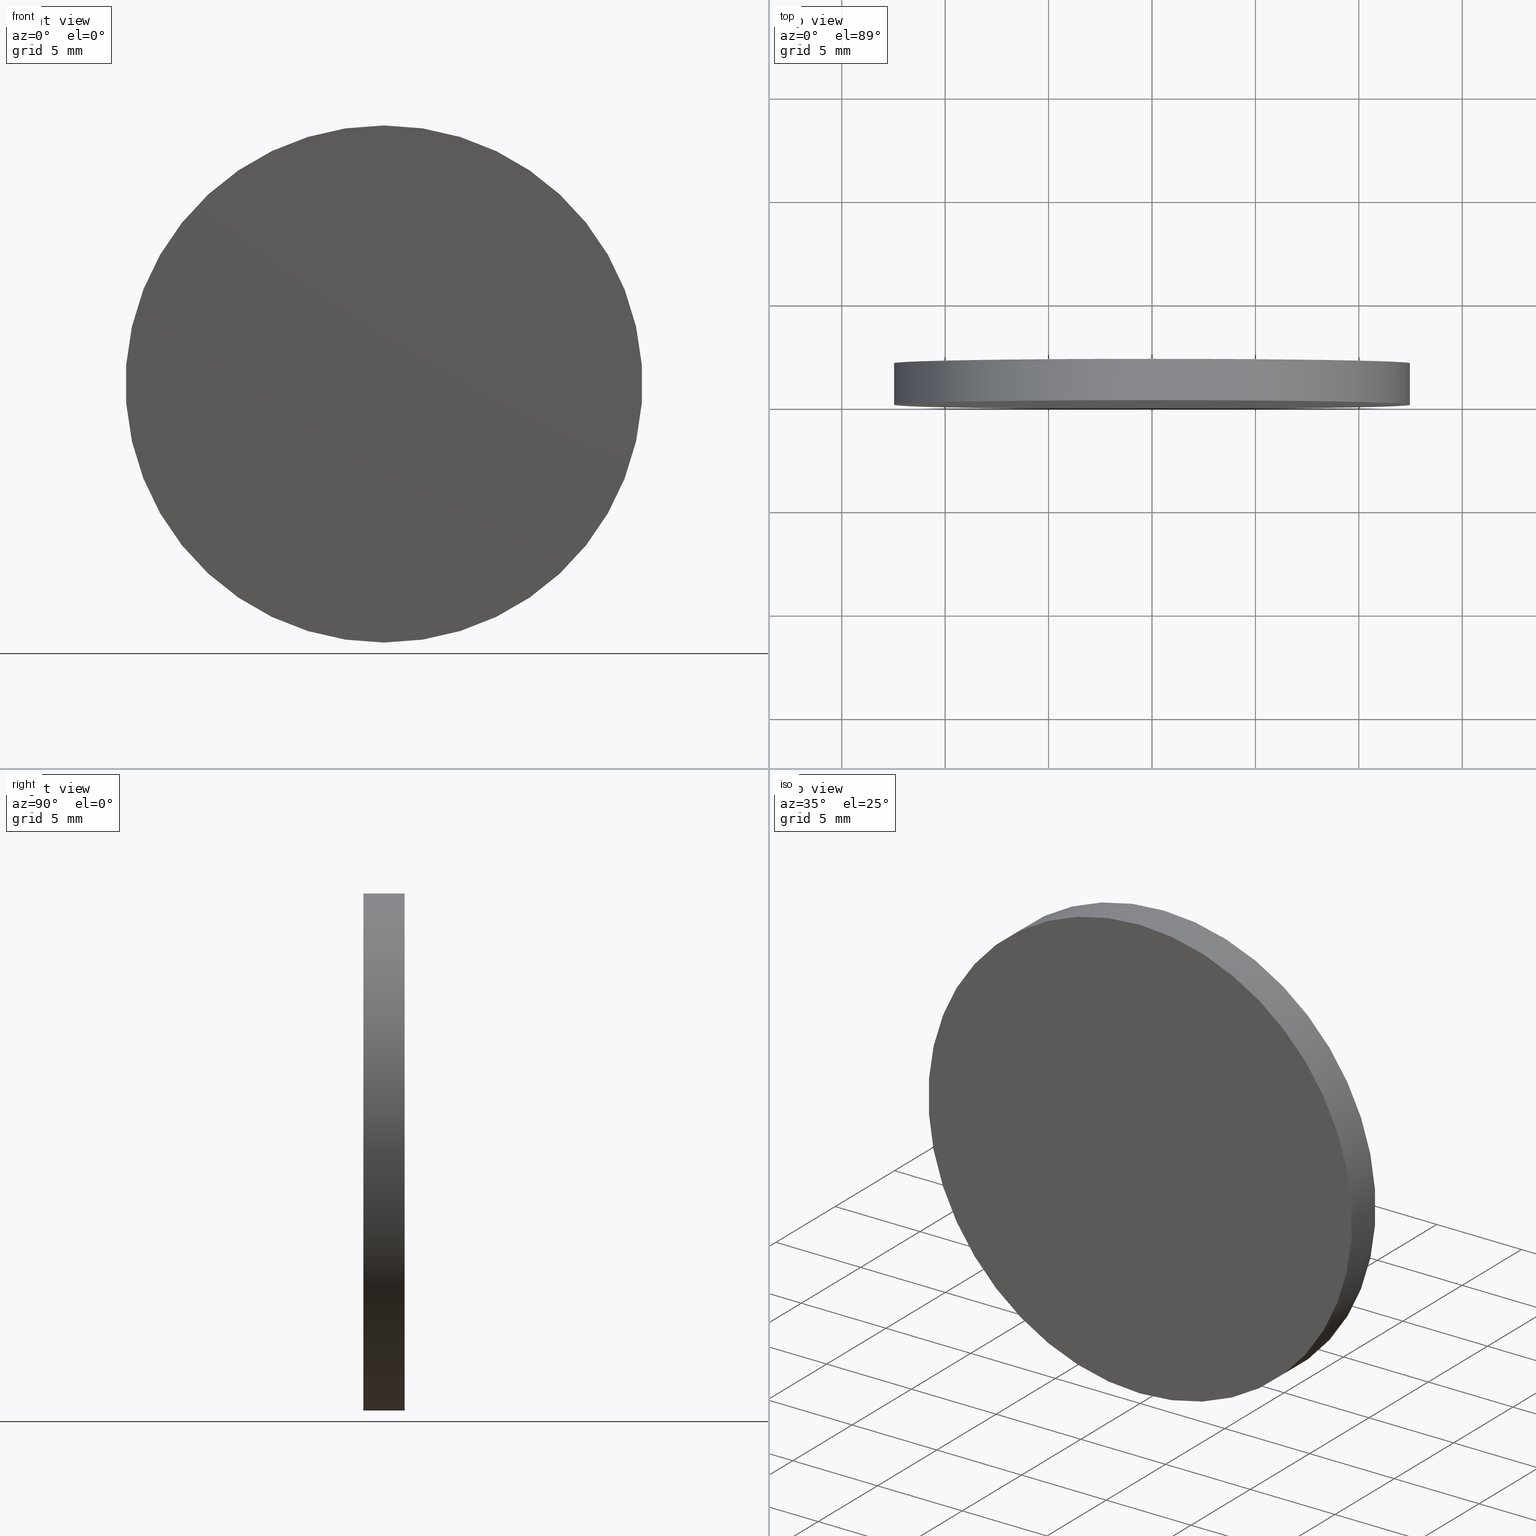
[diagram: canonical four-view strip — front | top / right | iso, engineering-drawing reading convention]
A machine part, canonical four-view strip (front | top / right | iso — engineering-drawing reading convention). The complete STEP part file that produces these views, byte-faithful:
ISO-10303-21;
HEADER;
FILE_DESCRIPTION (( 'STEP AP214' ),
    '1' );
FILE_NAME ('218602.STEP',
    '2019-07-30T02:58:36',
    ( 'user' ),
    ( '΢���й�' ),
    'SwSTEP 2.0',
    'SolidWorks 2016',
    '' );
FILE_SCHEMA (( 'AUTOMOTIVE_DESIGN' ));
ENDSEC;

DATA;
#1 = EDGE_LOOP ( 'NONE', ( #107, #24 ) ) ;
#2 = SHAPE_DEFINITION_REPRESENTATION ( #85, #106 ) ;
#3 = ADVANCED_FACE ( 'NONE', ( #117 ), #60, .F. ) ;
#4 = SURFACE_SIDE_STYLE ('',( #66 ) ) ;
#5 = CARTESIAN_POINT ( 'NONE',  ( 0.0000000000000000000, 2.000000000000000000, 0.0000000000000000000 ) ) ;
#6 = AXIS2_PLACEMENT_3D ( 'NONE', #110, #28, #97 ) ;
#7 = CIRCLE ( 'NONE', #41, 12.50000000000000000 ) ;
#8 = CYLINDRICAL_SURFACE ( 'NONE', #33, 12.50000000000000000 ) ;
#9 = AXIS2_PLACEMENT_3D ( 'NONE', #127, #51, #12 ) ;
#10 = DIRECTION ( 'NONE',  ( 0.0000000000000000000, 1.000000000000000000, 0.0000000000000000000 ) ) ;
#11 = CARTESIAN_POINT ( 'NONE',  ( 0.0000000000000000000, 0.0000000000000000000, 0.0000000000000000000 ) ) ;
#12 = DIRECTION ( 'NONE',  ( 0.0000000000000000000, -0.0000000000000000000, 1.000000000000000000 ) ) ;
#13 =( NAMED_UNIT ( * ) PLANE_ANGLE_UNIT ( ) SI_UNIT ( $, .RADIAN. ) );
#14 = CARTESIAN_POINT ( 'NONE',  ( 1.530808498934191500E-015, 0.0000000000000000000, 12.50000000000000000 ) ) ;
#15 = EDGE_LOOP ( 'NONE', ( #55, #47, #50, #84 ) ) ;
#16 = FILL_AREA_STYLE ('',( #17 ) ) ;
#17 = FILL_AREA_STYLE_COLOUR ( '', #112 ) ;
#18 = CARTESIAN_POINT ( 'NONE',  ( 0.0000000000000000000, 2.000000000000000000, 0.0000000000000000000 ) ) ;
#19 = VERTEX_POINT ( 'NONE', #31 ) ;
#20 = DIRECTION ( 'NONE',  ( 0.0000000000000000000, 1.000000000000000000, 0.0000000000000000000 ) ) ;
#21 = DIRECTION ( 'NONE',  ( 0.0000000000000000000, 1.000000000000000000, 0.0000000000000000000 ) ) ;
#22 = AXIS2_PLACEMENT_3D ( 'NONE', #5, #44, #37 ) ;
#23 = APPLICATION_CONTEXT ( 'automotive_design' ) ;
#24 = ORIENTED_EDGE ( 'NONE', *, *, #101, .F. ) ;
#25 = PRESENTATION_STYLE_ASSIGNMENT (( #79 ) ) ;
#26 = UNCERTAINTY_MEASURE_WITH_UNIT (LENGTH_MEASURE( 1.000000000000000100E-005 ), #82, 'distance_accuracy_value', 'NONE');
#27 = AXIS2_PLACEMENT_3D ( 'NONE', #90, #10, #77 ) ;
#28 = DIRECTION ( 'NONE',  ( 0.0000000000000000000, 1.000000000000000000, 0.0000000000000000000 ) ) ;
#29 = FACE_OUTER_BOUND ( 'NONE', #78, .T. ) ;
#30 = CARTESIAN_POINT ( 'NONE',  ( 1.530808498934191500E-015, 2.000000000000000000, 12.50000000000000000 ) ) ;
#31 = CARTESIAN_POINT ( 'NONE',  ( 0.0000000000000000000, 2.000000000000000000, -12.50000000000000000 ) ) ;
#32 =( LENGTH_UNIT ( ) NAMED_UNIT ( * ) SI_UNIT ( .MILLI., .METRE. ) );
#33 = AXIS2_PLACEMENT_3D ( 'NONE', #18, #111, #57 ) ;
#34 = APPLICATION_PROTOCOL_DEFINITION ( 'draft international standard', 'automotive_design', 1998, #103 ) ;
#35 = APPLICATION_PROTOCOL_DEFINITION ( 'draft international standard', 'automotive_design', 1998, #23 ) ;
#36 = VECTOR ( 'NONE', #43, 1000.000000000000000 ) ;
#37 = DIRECTION ( 'NONE',  ( 0.0000000000000000000, 0.0000000000000000000, -1.000000000000000000 ) ) ;
#38 = AXIS2_PLACEMENT_3D ( 'NONE', #69, #135, #56 ) ;
#39 = PRODUCT ( '218602', '218602', '', ( #48 ) ) ;
#40 = UNCERTAINTY_MEASURE_WITH_UNIT (LENGTH_MEASURE( 1.000000000000000100E-005 ), #32, 'distance_accuracy_value', 'NONE');
#41 = AXIS2_PLACEMENT_3D ( 'NONE', #11, #21, #72 ) ;
#42 = AXIS2_PLACEMENT_3D ( 'NONE', #132, #63, #116 ) ;
#43 = DIRECTION ( 'NONE',  ( -0.0000000000000000000, -1.000000000000000000, -0.0000000000000000000 ) ) ;
#44 = DIRECTION ( 'NONE',  ( -0.0000000000000000000, -1.000000000000000000, -0.0000000000000000000 ) ) ;
#45 = ADVANCED_FACE ( 'NONE', ( #29 ), #124, .T. ) ;
#46 = VERTEX_POINT ( 'NONE', #30 ) ;
#47 = ORIENTED_EDGE ( 'NONE', *, *, #108, .F. ) ;
#48 = PRODUCT_CONTEXT ( 'NONE', #23, 'mechanical' ) ;
#49 =( NAMED_UNIT ( * ) SI_UNIT ( $, .STERADIAN. ) SOLID_ANGLE_UNIT ( ) );
#50 = ORIENTED_EDGE ( 'NONE', *, *, #95, .T. ) ;
#51 = DIRECTION ( 'NONE',  ( 0.0000000000000000000, 1.000000000000000000, 0.0000000000000000000 ) ) ;
#52 = STYLED_ITEM ( 'NONE', ( #25 ), #123 ) ;
#53 = ORIENTED_EDGE ( 'NONE', *, *, #134, .T. ) ;
#54 = PRODUCT_DEFINITION ( 'δ֪', '', #64, #67 ) ;
#55 = ORIENTED_EDGE ( 'NONE', *, *, #134, .F. ) ;
#56 = DIRECTION ( 'NONE',  ( 0.0000000000000000000, 0.0000000000000000000, 1.000000000000000000 ) ) ;
#57 = DIRECTION ( 'NONE',  ( 0.0000000000000000000, 0.0000000000000000000, -1.000000000000000000 ) ) ;
#58 = CIRCLE ( 'NONE', #6, 12.50000000000000000 ) ;
#59 = ADVANCED_FACE ( 'NONE', ( #126 ), #98, .T. ) ;
#60 = PLANE ( 'NONE',  #9 ) ;
#61 =( NAMED_UNIT ( * ) SI_UNIT ( $, .STERADIAN. ) SOLID_ANGLE_UNIT ( ) );
#62 = PRESENTATION_LAYER_ASSIGNMENT (  '', '', ( #52 ) ) ;
#63 = DIRECTION ( 'NONE',  ( 0.0000000000000000000, 0.0000000000000000000, 1.000000000000000000 ) ) ;
#64 = PRODUCT_DEFINITION_FORMATION_WITH_SPECIFIED_SOURCE ( '�κ�', '', #39, .NOT_KNOWN. ) ;
#65 = LINE ( 'NONE', #92, #120 ) ;
#66 = SURFACE_STYLE_FILL_AREA ( #16 ) ;
#67 = PRODUCT_DEFINITION_CONTEXT ( 'detailed design', #103, 'design' ) ;
#68 = MECHANICAL_DESIGN_GEOMETRIC_PRESENTATION_REPRESENTATION (  '', ( #52 ), #74 ) ;
#69 = CARTESIAN_POINT ( 'NONE',  ( 0.0000000000000000000, 0.0000000000000000000, 0.0000000000000000000 ) ) ;
#70 = PRODUCT_RELATED_PRODUCT_CATEGORY ( 'part', '', ( #39 ) ) ;
#71 = CARTESIAN_POINT ( 'NONE',  ( 0.0000000000000000000, 2.000000000000000000, -12.50000000000000000 ) ) ;
#72 = DIRECTION ( 'NONE',  ( 0.0000000000000000000, 0.0000000000000000000, 1.000000000000000000 ) ) ;
#73 =( NAMED_UNIT ( * ) SI_UNIT ( $, .STERADIAN. ) SOLID_ANGLE_UNIT ( ) );
#74 =( GEOMETRIC_REPRESENTATION_CONTEXT ( 3 ) GLOBAL_UNCERTAINTY_ASSIGNED_CONTEXT ( ( #119 ) ) GLOBAL_UNIT_ASSIGNED_CONTEXT ( ( #129, #80, #61 ) ) REPRESENTATION_CONTEXT ( 'NONE', 'WORKASPACE' ) );
#75 = VERTEX_POINT ( 'NONE', #113 ) ;
#76 = FACE_OUTER_BOUND ( 'NONE', #15, .T. ) ;
#77 = DIRECTION ( 'NONE',  ( 0.0000000000000000000, -0.0000000000000000000, 1.000000000000000000 ) ) ;
#78 = EDGE_LOOP ( 'NONE', ( #140, #53, #96, #100 ) ) ;
#79 = SURFACE_STYLE_USAGE ( .BOTH. , #4 ) ;
#80 =( NAMED_UNIT ( * ) PLANE_ANGLE_UNIT ( ) SI_UNIT ( $, .RADIAN. ) );
#81 = AXIS2_PLACEMENT_3D ( 'NONE', #114, #20, #83 ) ;
#82 =( LENGTH_UNIT ( ) NAMED_UNIT ( * ) SI_UNIT ( .MILLI., .METRE. ) );
#83 = DIRECTION ( 'NONE',  ( 0.0000000000000000000, 0.0000000000000000000, 1.000000000000000000 ) ) ;
#84 = ORIENTED_EDGE ( 'NONE', *, *, #121, .T. ) ;
#85 = PRODUCT_DEFINITION_SHAPE ( 'NONE', 'NONE',  #54 ) ;
#86 = CIRCLE ( 'NONE', #81, 12.50000000000000000 ) ;
#87 = ORIENTED_EDGE ( 'NONE', *, *, #108, .T. ) ;
#88 =( GEOMETRIC_REPRESENTATION_CONTEXT ( 3 ) GLOBAL_UNCERTAINTY_ASSIGNED_CONTEXT ( ( #40 ) ) GLOBAL_UNIT_ASSIGNED_CONTEXT ( ( #32, #138, #49 ) ) REPRESENTATION_CONTEXT ( 'NONE', 'WORKASPACE' ) );
#89 = CIRCLE ( 'NONE', #38, 12.50000000000000000 ) ;
#90 = CARTESIAN_POINT ( 'NONE',  ( 0.0000000000000000000, 2.000000000000000000, 0.0000000000000000000 ) ) ;
#91 = DIRECTION ( 'NONE',  ( -0.0000000000000000000, -1.000000000000000000, -0.0000000000000000000 ) ) ;
#92 = CARTESIAN_POINT ( 'NONE',  ( 1.530808498934191500E-015, 2.000000000000000000, 12.50000000000000000 ) ) ;
#93 = SURFACE_STYLE_USAGE ( .BOTH. , #137 ) ;
#94 = LINE ( 'NONE', #71, #36 ) ;
#95 = EDGE_CURVE ( 'NONE', #19, #75, #94, .T. ) ;
#96 = ORIENTED_EDGE ( 'NONE', *, *, #101, .T. ) ;
#97 = DIRECTION ( 'NONE',  ( 0.0000000000000000000, 0.0000000000000000000, 1.000000000000000000 ) ) ;
#98 = PLANE ( 'NONE',  #27 ) ;
#99 = ADVANCED_FACE ( 'NONE', ( #76 ), #8, .T. ) ;
#100 = ORIENTED_EDGE ( 'NONE', *, *, #95, .F. ) ;
#101 = EDGE_CURVE ( 'NONE', #139, #75, #89, .T. ) ;
#102 = STYLED_ITEM ( 'NONE', ( #118 ), #106 ) ;
#103 = APPLICATION_CONTEXT ( 'automotive_design' ) ;
#104 = FILL_AREA_STYLE ('',( #125 ) ) ;
#105 = EDGE_LOOP ( 'NONE', ( #87, #136 ) ) ;
#106 = ADVANCED_BREP_SHAPE_REPRESENTATION ( '218602', ( #123, #42 ), #88 ) ;
#107 = ORIENTED_EDGE ( 'NONE', *, *, #121, .F. ) ;
#108 = EDGE_CURVE ( 'NONE', #19, #46, #58, .T. ) ;
#109 = PRESENTATION_LAYER_ASSIGNMENT (  '', '', ( #102 ) ) ;
#110 = CARTESIAN_POINT ( 'NONE',  ( 0.0000000000000000000, 2.000000000000000000, 0.0000000000000000000 ) ) ;
#111 = DIRECTION ( 'NONE',  ( -0.0000000000000000000, -1.000000000000000000, -0.0000000000000000000 ) ) ;
#112 = COLOUR_RGB ( '',1.000000000000000000, 1.000000000000000000, 1.000000000000000000 ) ;
#113 = CARTESIAN_POINT ( 'NONE',  ( 0.0000000000000000000, 0.0000000000000000000, -12.50000000000000000 ) ) ;
#114 = CARTESIAN_POINT ( 'NONE',  ( 0.0000000000000000000, 2.000000000000000000, 0.0000000000000000000 ) ) ;
#115 = CLOSED_SHELL ( 'NONE', ( #45, #99, #59, #3 ) ) ;
#116 = DIRECTION ( 'NONE',  ( 1.000000000000000000, 0.0000000000000000000, 0.0000000000000000000 ) ) ;
#117 = FACE_OUTER_BOUND ( 'NONE', #1, .T. ) ;
#118 = PRESENTATION_STYLE_ASSIGNMENT (( #93 ) ) ;
#119 = UNCERTAINTY_MEASURE_WITH_UNIT (LENGTH_MEASURE( 1.000000000000000100E-005 ), #129, 'distance_accuracy_value', 'NONE');
#120 = VECTOR ( 'NONE', #91, 1000.000000000000000 ) ;
#121 = EDGE_CURVE ( 'NONE', #75, #139, #7, .T. ) ;
#122 = MECHANICAL_DESIGN_GEOMETRIC_PRESENTATION_REPRESENTATION (  '', ( #102 ), #131 ) ;
#123 = MANIFOLD_SOLID_BREP ( '͹̨-����1', #115 ) ;
#124 = CYLINDRICAL_SURFACE ( 'NONE', #22, 12.50000000000000000 ) ;
#125 = FILL_AREA_STYLE_COLOUR ( '', #133 ) ;
#126 = FACE_OUTER_BOUND ( 'NONE', #105, .T. ) ;
#127 = CARTESIAN_POINT ( 'NONE',  ( 0.0000000000000000000, 0.0000000000000000000, 0.0000000000000000000 ) ) ;
#128 = SURFACE_STYLE_FILL_AREA ( #104 ) ;
#129 =( LENGTH_UNIT ( ) NAMED_UNIT ( * ) SI_UNIT ( .MILLI., .METRE. ) );
#130 = EDGE_CURVE ( 'NONE', #46, #19, #86, .T. ) ;
#131 =( GEOMETRIC_REPRESENTATION_CONTEXT ( 3 ) GLOBAL_UNCERTAINTY_ASSIGNED_CONTEXT ( ( #26 ) ) GLOBAL_UNIT_ASSIGNED_CONTEXT ( ( #82, #13, #73 ) ) REPRESENTATION_CONTEXT ( 'NONE', 'WORKASPACE' ) );
#132 = CARTESIAN_POINT ( 'NONE',  ( 0.0000000000000000000, 0.0000000000000000000, 0.0000000000000000000 ) ) ;
#133 = COLOUR_RGB ( '',1.000000000000000000, 1.000000000000000000, 1.000000000000000000 ) ;
#134 = EDGE_CURVE ( 'NONE', #46, #139, #65, .T. ) ;
#135 = DIRECTION ( 'NONE',  ( 0.0000000000000000000, 1.000000000000000000, 0.0000000000000000000 ) ) ;
#136 = ORIENTED_EDGE ( 'NONE', *, *, #130, .T. ) ;
#137 = SURFACE_SIDE_STYLE ('',( #128 ) ) ;
#138 =( NAMED_UNIT ( * ) PLANE_ANGLE_UNIT ( ) SI_UNIT ( $, .RADIAN. ) );
#139 = VERTEX_POINT ( 'NONE', #14 ) ;
#140 = ORIENTED_EDGE ( 'NONE', *, *, #130, .F. ) ;
ENDSEC;
END-ISO-10303-21;
